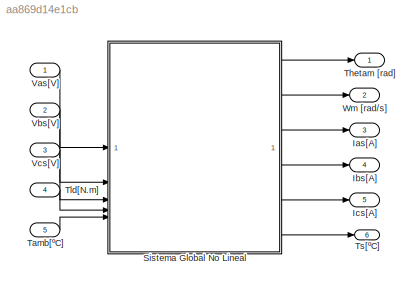
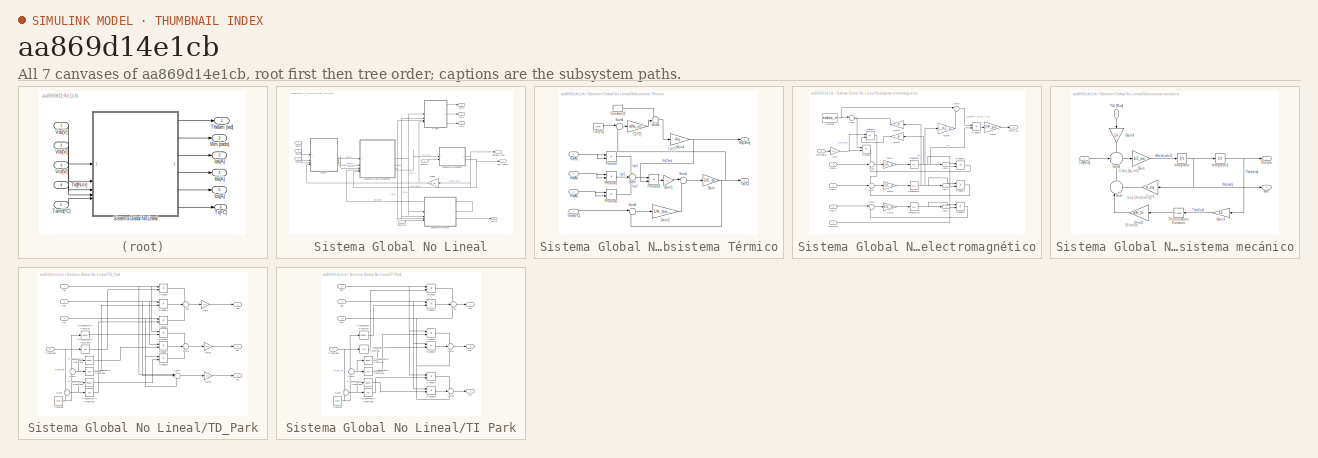
[diagram: thumbnail index - all 7 canvases of the model, root first then tree order]
MODEL slx_aa869d14e1cb
KIND model
CONFIG AbsTol = auto
CONFIG EnableMultiTasking = off
CONFIG FixedStep = auto
CONFIG MaxStep = auto
CONFIG MinStep = auto
CONFIG RelTol = 1e-3
CONFIG SampleTimeConstraint = Unconstrained
CONFIG SolverName = VariableStepAuto
CONFIG StartTime = 0.0
CONFIG StopTime = 10.0
BLOCK [Outport] Ias[A]
  Port = 3
BLOCK [Outport] Ibs[A]
  Port = 4
BLOCK [Outport] Ics[A]
  Port = 5
BLOCK [SubSystem] Sistema Global No Lineal
BLOCK [Gain] Sistema Global No Lineal/Gain2
  Gain = P_p
BLOCK [Outport] Sistema Global No Lineal/Ias[A]
  Port = 3
BLOCK [Outport] Sistema Global No Lineal/Ibs[A]
  Port = 4
BLOCK [Outport] Sistema Global No Lineal/Ics[A]
  Port = 5
BLOCK [SubSystem] Sistema Global No Lineal/Subsistema Térmico
BLOCK [Constant] Sistema Global No Lineal/Subsistema Térmico/Constant2
BLOCK [Gain] Sistema Global No Lineal/Subsistema Térmico/Gain
  Gain = 1/C_ts
BLOCK [Gain] Sistema Global No Lineal/Subsistema Térmico/Gain1
  Gain = 3/2
BLOCK [Gain] Sistema Global No Lineal/Subsistema Térmico/Gain2
  Gain = 1/R_tsamb
BLOCK [Gain] Sistema Global No Lineal/Subsistema Térmico/Gain4
  Gain = Rs
BLOCK [Inport] Sistema Global No Lineal/Subsistema Térmico/Ids[A]
  Port = 2
BLOCK [Inport] Sistema Global No Lineal/Subsistema Térmico/Ios[A]
  Port = 3
BLOCK [Inport] Sistema Global No Lineal/Subsistema Térmico/Iqs[A]
BLOCK [Product] Sistema Global No Lineal/Subsistema Térmico/Product
BLOCK [Product] Sistema Global No Lineal/Subsistema Térmico/Product1
BLOCK [Product] Sistema Global No Lineal/Subsistema Térmico/Product2
BLOCK [Product] Sistema Global No Lineal/Subsistema Térmico/Product3
BLOCK [Outport] Sistema Global No Lineal/Subsistema Térmico/Rs[Ohm]
BLOCK [Sum] Sistema Global No Lineal/Subsistema Térmico/Sum
  Inputs = +++
BLOCK [Sum] Sistema Global No Lineal/Subsistema Térmico/Sum1
  Inputs = |+-
BLOCK [Sum] Sistema Global No Lineal/Subsistema Térmico/Sum2
  Inputs = |-+
BLOCK [Sum] Sistema Global No Lineal/Subsistema Térmico/Sum3
  Inputs = ++|
BLOCK [Sum] Sistema Global No Lineal/Subsistema Térmico/Sum4
  Inputs = |-+
BLOCK [Inport] Sistema Global No Lineal/Subsistema Térmico/Tamb[ºC]
  Port = 4
BLOCK [Constant] Sistema Global No Lineal/Subsistema Térmico/Tref[ºC]
  Value = Tsref
BLOCK [Outport] Sistema Global No Lineal/Subsistema Térmico/Ts[ºC]
  Port = 2
BLOCK [Gain] Sistema Global No Lineal/Subsistema Térmico/[1//ºC]
  Gain = alfa_cu
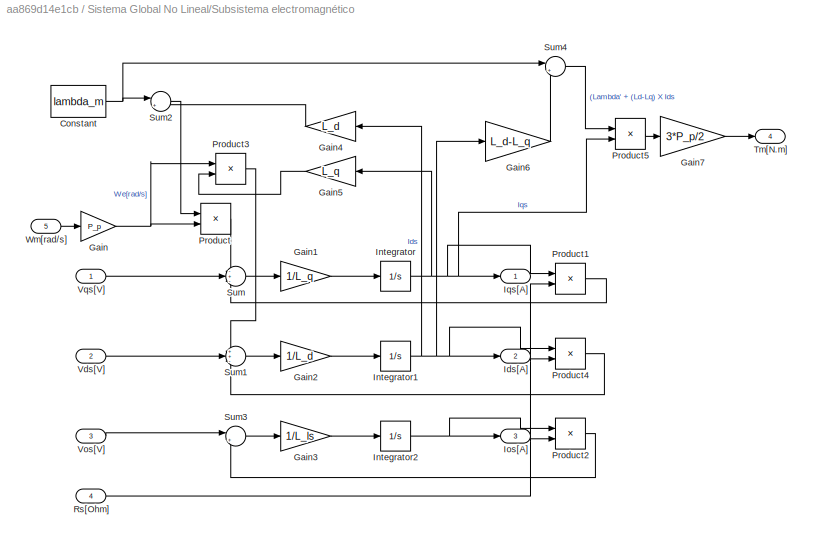
BLOCK [SubSystem] Sistema Global No Lineal/Subsistema electromagnético
BLOCK [Constant] Sistema Global No Lineal/Subsistema electromagnético/Constant
  Value = lambda_m
BLOCK [Gain] Sistema Global No Lineal/Subsistema electromagnético/Gain
  Gain = P_p
BLOCK [Gain] Sistema Global No Lineal/Subsistema electromagnético/Gain1
  Gain = 1/L_q
BLOCK [Gain] Sistema Global No Lineal/Subsistema electromagnético/Gain2
  Gain = 1/L_d
BLOCK [Gain] Sistema Global No Lineal/Subsistema electromagnético/Gain3
  Gain = 1/L_ls
BLOCK [Gain] Sistema Global No Lineal/Subsistema electromagnético/Gain4
  Gain = L_d
BLOCK [Gain] Sistema Global No Lineal/Subsistema electromagnético/Gain5
  Gain = L_q
BLOCK [Gain] Sistema Global No Lineal/Subsistema electromagnético/Gain6
  Gain = L_d-L_q
BLOCK [Gain] Sistema Global No Lineal/Subsistema electromagnético/Gain7
  Gain = 3*P_p/2
BLOCK [Outport] Sistema Global No Lineal/Subsistema electromagnético/Ids[A]
  Port = 2
BLOCK [Integrator] Sistema Global No Lineal/Subsistema electromagnético/Integrator
BLOCK [Integrator] Sistema Global No Lineal/Subsistema electromagnético/Integrator1
BLOCK [Integrator] Sistema Global No Lineal/Subsistema electromagnético/Integrator2
BLOCK [Outport] Sistema Global No Lineal/Subsistema electromagnético/Ios[A]
  Port = 3
BLOCK [Outport] Sistema Global No Lineal/Subsistema electromagnético/Iqs[A]
BLOCK [Product] Sistema Global No Lineal/Subsistema electromagnético/Product
BLOCK [Product] Sistema Global No Lineal/Subsistema electromagnético/Product1
BLOCK [Product] Sistema Global No Lineal/Subsistema electromagnético/Product2
BLOCK [Product] Sistema Global No Lineal/Subsistema electromagnético/Product3
BLOCK [Product] Sistema Global No Lineal/Subsistema electromagnético/Product4
BLOCK [Product] Sistema Global No Lineal/Subsistema electromagnético/Product5
BLOCK [Inport] Sistema Global No Lineal/Subsistema electromagnético/Rs[Ohm]
  Port = 4
BLOCK [Sum] Sistema Global No Lineal/Subsistema electromagnético/Sum
  Inputs = -+-
BLOCK [Sum] Sistema Global No Lineal/Subsistema electromagnético/Sum1
  Inputs = ++-
BLOCK [Sum] Sistema Global No Lineal/Subsistema electromagnético/Sum2
  Inputs = |++
BLOCK [Sum] Sistema Global No Lineal/Subsistema electromagnético/Sum3
  Inputs = |+-
BLOCK [Sum] Sistema Global No Lineal/Subsistema electromagnético/Sum4
  Inputs = |++
BLOCK [Outport] Sistema Global No Lineal/Subsistema electromagnético/Tm[N.m]
  Port = 4
BLOCK [Inport] Sistema Global No Lineal/Subsistema electromagnético/Vds[V]
  Port = 2
BLOCK [Inport] Sistema Global No Lineal/Subsistema electromagnético/Vos[V]
  Port = 3
BLOCK [Inport] Sistema Global No Lineal/Subsistema electromagnético/Vqs[V]
BLOCK [Inport] Sistema Global No Lineal/Subsistema electromagnético/Wm[rad//s]
  Port = 5
BLOCK [SubSystem] Sistema Global No Lineal/Subsistema mecánico
BLOCK [Gain] Sistema Global No Lineal/Subsistema mecánico/Gain
  Gain = 1/J_eq
BLOCK [Gain] Sistema Global No Lineal/Subsistema mecánico/Gain1
  Gain = b_eq
BLOCK [Gain] Sistema Global No Lineal/Subsistema mecánico/Gain2
  Gain = g*k_l/r
BLOCK [Gain] Sistema Global No Lineal/Subsistema mecánico/Gain3
  Gain = 1/r
BLOCK [Gain] Sistema Global No Lineal/Subsistema mecánico/Gain4
  Gain = 1/r
  NameLocation = left
BLOCK [Integrator] Sistema Global No Lineal/Subsistema mecánico/Integrator
BLOCK [Integrator] Sistema Global No Lineal/Subsistema mecánico/Integrator1
BLOCK [Sum] Sistema Global No Lineal/Subsistema mecánico/Sum
  Inputs = |++
  NameLocation = left
BLOCK [Sum] Sistema Global No Lineal/Subsistema mecánico/Sum1
  Inputs = -+-
BLOCK [Outport] Sistema Global No Lineal/Subsistema mecánico/Thetam
BLOCK [Inport] Sistema Global No Lineal/Subsistema mecánico/Tld [N.m]
  NameLocation = left
  Port = 2
BLOCK [Inport] Sistema Global No Lineal/Subsistema mecánico/Tm[N.m]
BLOCK [Trigonometry] Sistema Global No Lineal/Subsistema mecánico/Trigonometric Function
BLOCK [Outport] Sistema Global No Lineal/Subsistema mecánico/Wm
  Port = 2
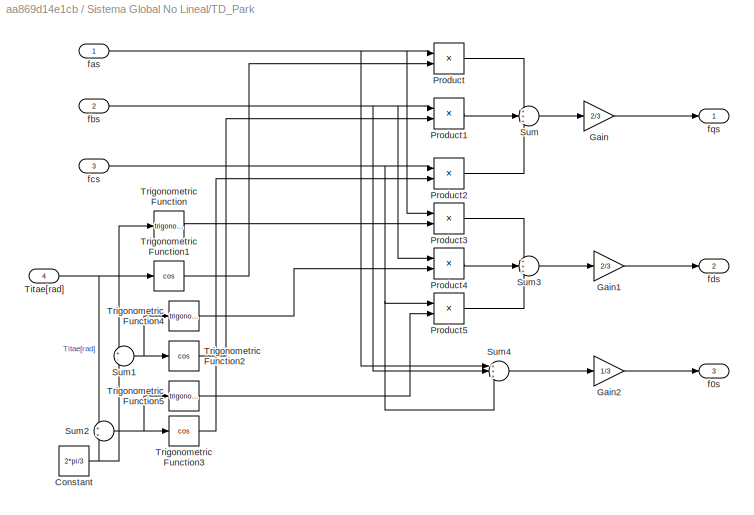
BLOCK [SubSystem] Sistema Global No Lineal/TD_Park
BLOCK [Constant] Sistema Global No Lineal/TD_Park/Constant
  Value = 2*pi/3
BLOCK [Gain] Sistema Global No Lineal/TD_Park/Gain
  Gain = 2/3
BLOCK [Gain] Sistema Global No Lineal/TD_Park/Gain1
  Gain = 2/3
BLOCK [Gain] Sistema Global No Lineal/TD_Park/Gain2
  Gain = 1/3
BLOCK [Product] Sistema Global No Lineal/TD_Park/Product
BLOCK [Product] Sistema Global No Lineal/TD_Park/Product1
BLOCK [Product] Sistema Global No Lineal/TD_Park/Product2
BLOCK [Product] Sistema Global No Lineal/TD_Park/Product3
BLOCK [Product] Sistema Global No Lineal/TD_Park/Product4
BLOCK [Product] Sistema Global No Lineal/TD_Park/Product5
BLOCK [Sum] Sistema Global No Lineal/TD_Park/Sum
  Inputs = +++
BLOCK [Sum] Sistema Global No Lineal/TD_Park/Sum1
  Inputs = +-
BLOCK [Sum] Sistema Global No Lineal/TD_Park/Sum2
BLOCK [Sum] Sistema Global No Lineal/TD_Park/Sum3
  Inputs = +++
BLOCK [Sum] Sistema Global No Lineal/TD_Park/Sum4
  Inputs = +++
BLOCK [Inport] Sistema Global No Lineal/TD_Park/Titae[rad]
  Port = 4
BLOCK [Trigonometry] Sistema Global No Lineal/TD_Park/Trigonometric Function
BLOCK [Trigonometry] Sistema Global No Lineal/TD_Park/Trigonometric Function1
  Operator = cos
BLOCK [Trigonometry] Sistema Global No Lineal/TD_Park/Trigonometric Function2
  Operator = cos
BLOCK [Trigonometry] Sistema Global No Lineal/TD_Park/Trigonometric Function3
  Operator = cos
BLOCK [Trigonometry] Sistema Global No Lineal/TD_Park/Trigonometric Function4
BLOCK [Trigonometry] Sistema Global No Lineal/TD_Park/Trigonometric Function5
BLOCK [Outport] Sistema Global No Lineal/TD_Park/f0s
  Port = 3
BLOCK [Inport] Sistema Global No Lineal/TD_Park/fas
BLOCK [Inport] Sistema Global No Lineal/TD_Park/fbs
  Port = 2
BLOCK [Inport] Sistema Global No Lineal/TD_Park/fcs
  Port = 3
BLOCK [Outport] Sistema Global No Lineal/TD_Park/fds
  Port = 2
BLOCK [Outport] Sistema Global No Lineal/TD_Park/fqs
BLOCK [SubSystem] Sistema Global No Lineal/TI Park
BLOCK [Constant] Sistema Global No Lineal/TI Park/Constant
  Value = 2*pi/3
BLOCK [Product] Sistema Global No Lineal/TI Park/Product
BLOCK [Product] Sistema Global No Lineal/TI Park/Product1
BLOCK [Product] Sistema Global No Lineal/TI Park/Product2
BLOCK [Product] Sistema Global No Lineal/TI Park/Product3
BLOCK [Product] Sistema Global No Lineal/TI Park/Product4
BLOCK [Product] Sistema Global No Lineal/TI Park/Product5
BLOCK [Sum] Sistema Global No Lineal/TI Park/Sum
  Inputs = +++
BLOCK [Sum] Sistema Global No Lineal/TI Park/Sum1
  Inputs = +-
BLOCK [Sum] Sistema Global No Lineal/TI Park/Sum2
BLOCK [Sum] Sistema Global No Lineal/TI Park/Sum3
  Inputs = +++
BLOCK [Sum] Sistema Global No Lineal/TI Park/Sum4
  Inputs = +++
BLOCK [Inport] Sistema Global No Lineal/TI Park/Titae[rad]
  Port = 4
BLOCK [Trigonometry] Sistema Global No Lineal/TI Park/Trigonometric Function
BLOCK [Trigonometry] Sistema Global No Lineal/TI Park/Trigonometric Function1
  Operator = cos
BLOCK [Trigonometry] Sistema Global No Lineal/TI Park/Trigonometric Function2
  Operator = cos
BLOCK [Trigonometry] Sistema Global No Lineal/TI Park/Trigonometric Function3
  Operator = cos
BLOCK [Trigonometry] Sistema Global No Lineal/TI Park/Trigonometric Function4
BLOCK [Trigonometry] Sistema Global No Lineal/TI Park/Trigonometric Function5
BLOCK [Inport] Sistema Global No Lineal/TI Park/f0s
  Port = 3
BLOCK [Outport] Sistema Global No Lineal/TI Park/fas
BLOCK [Outport] Sistema Global No Lineal/TI Park/fbs
  Port = 2
BLOCK [Outport] Sistema Global No Lineal/TI Park/fcs
  Port = 3
BLOCK [Inport] Sistema Global No Lineal/TI Park/fds
  Port = 2
BLOCK [Inport] Sistema Global No Lineal/TI Park/fqs
BLOCK [Inport] Sistema Global No Lineal/Tamb[ºC]
  Port = 5
BLOCK [Outport] Sistema Global No Lineal/Thetam [rad]
BLOCK [Inport] Sistema Global No Lineal/Tld[N.m]
  Port = 4
BLOCK [Outport] Sistema Global No Lineal/Ts[ºC]
  Port = 6
BLOCK [Inport] Sistema Global No Lineal/Vas[V]
BLOCK [Inport] Sistema Global No Lineal/Vbs[V]
  Port = 2
BLOCK [Inport] Sistema Global No Lineal/Vcs[V]
  Port = 3
BLOCK [Outport] Sistema Global No Lineal/Wm [rad//s]
  Port = 2
BLOCK [Inport] Tamb[ºC]
  Port = 5
BLOCK [Outport] Thetam [rad]
BLOCK [Inport] Tld[N.m]
  Port = 4
BLOCK [Outport] Ts[ºC]
  Port = 6
BLOCK [Inport] Vas[V]
BLOCK [Inport] Vbs[V]
  Port = 2
BLOCK [Inport] Vcs[V]
  Port = 3
BLOCK [Outport] Wm [rad//s]
  Port = 2
ANNOTATION Sistema Global No Lineal/Subsistema mecánico: 1/Jeq [kg.m^2]
ANNOTATION Sistema Global No Lineal/Subsistema mecánico: [N.m/rad]
ANNOTATION Sistema Global No Lineal/Subsistema mecánico: beq [N.m/{rad/s}]
NET Sistema Global No Lineal/Gain2:1 -> Sistema Global No Lineal/TD_Park:4, Sistema Global No Lineal/TI Park:4
LINE Sistema Global No Lineal/Subsistema Térmico/Constant2:1 -> Sistema Global No Lineal/Subsistema Térmico/Sum3:1
LINE Sistema Global No Lineal/Subsistema Térmico/Gain1:1 -> Sistema Global No Lineal/Subsistema Térmico/Sum1:1
LINE Sistema Global No Lineal/Subsistema Térmico/Gain2:1 -> Sistema Global No Lineal/Subsistema Térmico/Sum1:2
NET Sistema Global No Lineal/Subsistema Térmico/Gain4:1 -> Sistema Global No Lineal/Subsistema Térmico/Product3:2, Sistema Global No Lineal/Subsistema Térmico/Rs[Ohm]:1
NET Sistema Global No Lineal/Subsistema Térmico/Gain:1 -> Sistema Global No Lineal/Subsistema Térmico/Sum2:2, Sistema Global No Lineal/Subsistema Térmico/Sum4:2, Sistema Global No Lineal/Subsistema Térmico/Ts[ºC]:1
NET Sistema Global No Lineal/Subsistema Térmico/Ids[A]:1 -> Sistema Global No Lineal/Subsistema Térmico/Product1:1, Sistema Global No Lineal/Subsistema Térmico/Product1:2
NET Sistema Global No Lineal/Subsistema Térmico/Ios[A]:1 -> Sistema Global No Lineal/Subsistema Térmico/Product2:1, Sistema Global No Lineal/Subsistema Térmico/Product2:2
NET Sistema Global No Lineal/Subsistema Térmico/Iqs[A]:1 -> Sistema Global No Lineal/Subsistema Térmico/Product:1, Sistema Global No Lineal/Subsistema Térmico/Product:2
LINE Sistema Global No Lineal/Subsistema Térmico/Product1:1 -> Sistema Global No Lineal/Subsistema Térmico/Sum:2
LINE Sistema Global No Lineal/Subsistema Térmico/Product2:1 -> Sistema Global No Lineal/Subsistema Térmico/Sum:3
LINE Sistema Global No Lineal/Subsistema Térmico/Product3:1 -> Sistema Global No Lineal/Subsistema Térmico/Gain1:1
LINE Sistema Global No Lineal/Subsistema Térmico/Product:1 -> Sistema Global No Lineal/Subsistema Térmico/Sum:1
LINE Sistema Global No Lineal/Subsistema Térmico/Sum1:1 -> Sistema Global No Lineal/Subsistema Térmico/Gain:1
LINE Sistema Global No Lineal/Subsistema Térmico/Sum2:1 -> Sistema Global No Lineal/Subsistema Térmico/Gain2:1
LINE Sistema Global No Lineal/Subsistema Térmico/Sum3:1 -> Sistema Global No Lineal/Subsistema Térmico/Gain4:1
LINE Sistema Global No Lineal/Subsistema Térmico/Sum4:1 -> Sistema Global No Lineal/Subsistema Térmico/[1//ºC]:1
LINE Sistema Global No Lineal/Subsistema Térmico/Sum:1 -> Sistema Global No Lineal/Subsistema Térmico/Product3:1
LINE Sistema Global No Lineal/Subsistema Térmico/Tamb[ºC]:1 -> Sistema Global No Lineal/Subsistema Térmico/Sum2:1
LINE Sistema Global No Lineal/Subsistema Térmico/Tref[ºC]:1 -> Sistema Global No Lineal/Subsistema Térmico/Sum4:1
LINE Sistema Global No Lineal/Subsistema Térmico/[1//ºC]:1 -> Sistema Global No Lineal/Subsistema Térmico/Sum3:2
LINE Sistema Global No Lineal/Subsistema Térmico:1 -> Sistema Global No Lineal/Subsistema electromagnético:4
LINE Sistema Global No Lineal/Subsistema Térmico:2 -> Sistema Global No Lineal/Ts[ºC]:1
NET Sistema Global No Lineal/Subsistema electromagnético/Constant:1 -> Sistema Global No Lineal/Subsistema electromagnético/Sum2:1, Sistema Global No Lineal/Subsistema electromagnético/Sum4:1
LINE Sistema Global No Lineal/Subsistema electromagnético/Gain1:1 -> Sistema Global No Lineal/Subsistema electromagnético/Integrator:1
LINE Sistema Global No Lineal/Subsistema electromagnético/Gain2:1 -> Sistema Global No Lineal/Subsistema electromagnético/Integrator1:1
LINE Sistema Global No Lineal/Subsistema electromagnético/Gain3:1 -> Sistema Global No Lineal/Subsistema electromagnético/Integrator2:1
LINE Sistema Global No Lineal/Subsistema electromagnético/Gain4:1 -> Sistema Global No Lineal/Subsistema electromagnético/Sum2:2
LINE Sistema Global No Lineal/Subsistema electromagnético/Gain5:1 -> Sistema Global No Lineal/Subsistema electromagnético/Product3:2
LINE Sistema Global No Lineal/Subsistema electromagnético/Gain6:1 -> Sistema Global No Lineal/Subsistema electromagnético/Sum4:2
LINE Sistema Global No Lineal/Subsistema electromagnético/Gain7:1 -> Sistema Global No Lineal/Subsistema electromagnético/Tm[N.m]:1
NET Sistema Global No Lineal/Subsistema electromagnético/Gain:1 -> Sistema Global No Lineal/Subsistema electromagnético/Product3:1, Sistema Global No Lineal/Subsistema electromagnético/Product:2
NET Sistema Global No Lineal/Subsistema electromagnético/Integrator1:1 -> Sistema Global No Lineal/Subsistema electromagnético/Gain4:1, Sistema Global No Lineal/Subsistema electromagnético/Gain6:1, Sistema Global No Lineal/Subsistema electromagnético/Ids[A]:1, Sistema Global No Lineal/Subsistema electromagnético/Product4:1
NET Sistema Global No Lineal/Subsistema electromagnético/Integrator2:1 -> Sistema Global No Lineal/Subsistema electromagnético/Ios[A]:1, Sistema Global No Lineal/Subsistema electromagnético/Product2:1
NET Sistema Global No Lineal/Subsistema electromagnético/Integrator:1 -> Sistema Global No Lineal/Subsistema electromagnético/Gain5:1, Sistema Global No Lineal/Subsistema electromagnético/Iqs[A]:1, Sistema Global No Lineal/Subsistema electromagnético/Product1:1, Sistema Global No Lineal/Subsistema electromagnético/Product5:2
LINE Sistema Global No Lineal/Subsistema electromagnético/Product1:1 -> Sistema Global No Lineal/Subsistema electromagnético/Sum:3
LINE Sistema Global No Lineal/Subsistema electromagnético/Product2:1 -> Sistema Global No Lineal/Subsistema electromagnético/Sum3:2
LINE Sistema Global No Lineal/Subsistema electromagnético/Product3:1 -> Sistema Global No Lineal/Subsistema electromagnético/Sum1:1
LINE Sistema Global No Lineal/Subsistema electromagnético/Product4:1 -> Sistema Global No Lineal/Subsistema electromagnético/Sum1:3
LINE Sistema Global No Lineal/Subsistema electromagnético/Product5:1 -> Sistema Global No Lineal/Subsistema electromagnético/Gain7:1
LINE Sistema Global No Lineal/Subsistema electromagnético/Product:1 -> Sistema Global No Lineal/Subsistema electromagnético/Sum:1
NET Sistema Global No Lineal/Subsistema electromagnético/Rs[Ohm]:1 -> Sistema Global No Lineal/Subsistema electromagnético/Product1:2, Sistema Global No Lineal/Subsistema electromagnético/Product2:2, Sistema Global No Lineal/Subsistema electromagnético/Product4:2
LINE Sistema Global No Lineal/Subsistema electromagnético/Sum1:1 -> Sistema Global No Lineal/Subsistema electromagnético/Gain2:1
LINE Sistema Global No Lineal/Subsistema electromagnético/Sum2:1 -> Sistema Global No Lineal/Subsistema electromagnético/Product:1
LINE Sistema Global No Lineal/Subsistema electromagnético/Sum3:1 -> Sistema Global No Lineal/Subsistema electromagnético/Gain3:1
LINE Sistema Global No Lineal/Subsistema electromagnético/Sum4:1 -> Sistema Global No Lineal/Subsistema electromagnético/Product5:1
LINE Sistema Global No Lineal/Subsistema electromagnético/Sum:1 -> Sistema Global No Lineal/Subsistema electromagnético/Gain1:1
LINE Sistema Global No Lineal/Subsistema electromagnético/Vds[V]:1 -> Sistema Global No Lineal/Subsistema electromagnético/Sum1:2
LINE Sistema Global No Lineal/Subsistema electromagnético/Vos[V]:1 -> Sistema Global No Lineal/Subsistema electromagnético/Sum3:1
LINE Sistema Global No Lineal/Subsistema electromagnético/Vqs[V]:1 -> Sistema Global No Lineal/Subsistema electromagnético/Sum:2
LINE Sistema Global No Lineal/Subsistema electromagnético/Wm[rad//s]:1 -> Sistema Global No Lineal/Subsistema electromagnético/Gain:1
NET Sistema Global No Lineal/Subsistema electromagnético:1 -> Sistema Global No Lineal/Subsistema Térmico:1, Sistema Global No Lineal/TI Park:1
NET Sistema Global No Lineal/Subsistema electromagnético:2 -> Sistema Global No Lineal/Subsistema Térmico:2, Sistema Global No Lineal/TI Park:2
NET Sistema Global No Lineal/Subsistema electromagnético:3 -> Sistema Global No Lineal/Subsistema Térmico:3, Sistema Global No Lineal/TI Park:3
LINE Sistema Global No Lineal/Subsistema electromagnético:4 -> Sistema Global No Lineal/Subsistema mecánico:1
LINE Sistema Global No Lineal/Subsistema mecánico/Gain1:1 -> Sistema Global No Lineal/Subsistema mecánico/Sum:2
LINE Sistema Global No Lineal/Subsistema mecánico/Gain2:1 -> Sistema Global No Lineal/Subsistema mecánico/Sum:1
LINE Sistema Global No Lineal/Subsistema mecánico/Gain3:1 -> Sistema Global No Lineal/Subsistema mecánico/Trigonometric Function:1
LINE Sistema Global No Lineal/Subsistema mecánico/Gain4:1 -> Sistema Global No Lineal/Subsistema mecánico/Sum1:1
LINE Sistema Global No Lineal/Subsistema mecánico/Gain:1 -> Sistema Global No Lineal/Subsistema mecánico/Integrator:1
NET Sistema Global No Lineal/Subsistema mecánico/Integrator1:1 -> Sistema Global No Lineal/Subsistema mecánico/Gain3:1, Sistema Global No Lineal/Subsistema mecánico/Thetam:1
NET Sistema Global No Lineal/Subsistema mecánico/Integrator:1 -> Sistema Global No Lineal/Subsistema mecánico/Gain1:1, Sistema Global No Lineal/Subsistema mecánico/Integrator1:1, Sistema Global No Lineal/Subsistema mecánico/Wm:1
LINE Sistema Global No Lineal/Subsistema mecánico/Sum1:1 -> Sistema Global No Lineal/Subsistema mecánico/Gain:1
LINE Sistema Global No Lineal/Subsistema mecánico/Sum:1 -> Sistema Global No Lineal/Subsistema mecánico/Sum1:3
LINE Sistema Global No Lineal/Subsistema mecánico/Tld [N.m]:1 -> Sistema Global No Lineal/Subsistema mecánico/Gain4:1
LINE Sistema Global No Lineal/Subsistema mecánico/Tm[N.m]:1 -> Sistema Global No Lineal/Subsistema mecánico/Sum1:2
LINE Sistema Global No Lineal/Subsistema mecánico/Trigonometric Function:1 -> Sistema Global No Lineal/Subsistema mecánico/Gain2:1
NET Sistema Global No Lineal/Subsistema mecánico:1 -> Sistema Global No Lineal/Gain2:1, Sistema Global No Lineal/Thetam [rad]:1
NET Sistema Global No Lineal/Subsistema mecánico:2 -> Sistema Global No Lineal/Subsistema electromagnético:5, Sistema Global No Lineal/Wm [rad//s]:1
NET Sistema Global No Lineal/TD_Park/Constant:1 -> Sistema Global No Lineal/TD_Park/Sum1:2, Sistema Global No Lineal/TD_Park/Sum2:2
LINE Sistema Global No Lineal/TD_Park/Gain1:1 -> Sistema Global No Lineal/TD_Park/fds:1
LINE Sistema Global No Lineal/TD_Park/Gain2:1 -> Sistema Global No Lineal/TD_Park/f0s:1
LINE Sistema Global No Lineal/TD_Park/Gain:1 -> Sistema Global No Lineal/TD_Park/fqs:1
LINE Sistema Global No Lineal/TD_Park/Product1:1 -> Sistema Global No Lineal/TD_Park/Sum:2
LINE Sistema Global No Lineal/TD_Park/Product2:1 -> Sistema Global No Lineal/TD_Park/Sum:3
LINE Sistema Global No Lineal/TD_Park/Product3:1 -> Sistema Global No Lineal/TD_Park/Sum3:1
LINE Sistema Global No Lineal/TD_Park/Product4:1 -> Sistema Global No Lineal/TD_Park/Sum3:2
LINE Sistema Global No Lineal/TD_Park/Product5:1 -> Sistema Global No Lineal/TD_Park/Sum3:3
LINE Sistema Global No Lineal/TD_Park/Product:1 -> Sistema Global No Lineal/TD_Park/Sum:1
NET Sistema Global No Lineal/TD_Park/Sum1:1 -> Sistema Global No Lineal/TD_Park/Trigonometric Function2:1, Sistema Global No Lineal/TD_Park/Trigonometric Function4:1
NET Sistema Global No Lineal/TD_Park/Sum2:1 -> Sistema Global No Lineal/TD_Park/Trigonometric Function3:1, Sistema Global No Lineal/TD_Park/Trigonometric Function5:1
LINE Sistema Global No Lineal/TD_Park/Sum3:1 -> Sistema Global No Lineal/TD_Park/Gain1:1
LINE Sistema Global No Lineal/TD_Park/Sum4:1 -> Sistema Global No Lineal/TD_Park/Gain2:1
LINE Sistema Global No Lineal/TD_Park/Sum:1 -> Sistema Global No Lineal/TD_Park/Gain:1
NET Sistema Global No Lineal/TD_Park/Titae[rad]:1 -> Sistema Global No Lineal/TD_Park/Sum1:1, Sistema Global No Lineal/TD_Park/Sum2:1, Sistema Global No Lineal/TD_Park/Trigonometric Function1:1, Sistema Global No Lineal/TD_Park/Trigonometric Function:1
LINE Sistema Global No Lineal/TD_Park/Trigonometric Function1:1 -> Sistema Global No Lineal/TD_Park/Product:2
LINE Sistema Global No Lineal/TD_Park/Trigonometric Function2:1 -> Sistema Global No Lineal/TD_Park/Product1:2
LINE Sistema Global No Lineal/TD_Park/Trigonometric Function3:1 -> Sistema Global No Lineal/TD_Park/Product2:2
LINE Sistema Global No Lineal/TD_Park/Trigonometric Function4:1 -> Sistema Global No Lineal/TD_Park/Product4:2
LINE Sistema Global No Lineal/TD_Park/Trigonometric Function5:1 -> Sistema Global No Lineal/TD_Park/Product5:2
LINE Sistema Global No Lineal/TD_Park/Trigonometric Function:1 -> Sistema Global No Lineal/TD_Park/Product3:2
NET Sistema Global No Lineal/TD_Park/fas:1 -> Sistema Global No Lineal/TD_Park/Product3:1, Sistema Global No Lineal/TD_Park/Product:1, Sistema Global No Lineal/TD_Park/Sum4:1
NET Sistema Global No Lineal/TD_Park/fbs:1 -> Sistema Global No Lineal/TD_Park/Product1:1, Sistema Global No Lineal/TD_Park/Product4:1, Sistema Global No Lineal/TD_Park/Sum4:2
NET Sistema Global No Lineal/TD_Park/fcs:1 -> Sistema Global No Lineal/TD_Park/Product2:1, Sistema Global No Lineal/TD_Park/Product5:1, Sistema Global No Lineal/TD_Park/Sum4:3
LINE Sistema Global No Lineal/TD_Park:1 -> Sistema Global No Lineal/Subsistema electromagnético:1
LINE Sistema Global No Lineal/TD_Park:2 -> Sistema Global No Lineal/Subsistema electromagnético:2
LINE Sistema Global No Lineal/TD_Park:3 -> Sistema Global No Lineal/Subsistema electromagnético:3
NET Sistema Global No Lineal/TI Park/Constant:1 -> Sistema Global No Lineal/TI Park/Sum1:2, Sistema Global No Lineal/TI Park/Sum2:2
LINE Sistema Global No Lineal/TI Park/Product1:1 -> Sistema Global No Lineal/TI Park/Sum:2
LINE Sistema Global No Lineal/TI Park/Product2:1 -> Sistema Global No Lineal/TI Park/Sum4:1
LINE Sistema Global No Lineal/TI Park/Product3:1 -> Sistema Global No Lineal/TI Park/Sum3:1
LINE Sistema Global No Lineal/TI Park/Product4:1 -> Sistema Global No Lineal/TI Park/Sum3:2
LINE Sistema Global No Lineal/TI Park/Product5:1 -> Sistema Global No Lineal/TI Park/Sum4:2
LINE Sistema Global No Lineal/TI Park/Product:1 -> Sistema Global No Lineal/TI Park/Sum:1
NET Sistema Global No Lineal/TI Park/Sum1:1 -> Sistema Global No Lineal/TI Park/Trigonometric Function2:1, Sistema Global No Lineal/TI Park/Trigonometric Function4:1
NET Sistema Global No Lineal/TI Park/Sum2:1 -> Sistema Global No Lineal/TI Park/Trigonometric Function3:1, Sistema Global No Lineal/TI Park/Trigonometric Function5:1
LINE Sistema Global No Lineal/TI Park/Sum3:1 -> Sistema Global No Lineal/TI Park/fbs:1
LINE Sistema Global No Lineal/TI Park/Sum4:1 -> Sistema Global No Lineal/TI Park/fcs:1
LINE Sistema Global No Lineal/TI Park/Sum:1 -> Sistema Global No Lineal/TI Park/fas:1
NET Sistema Global No Lineal/TI Park/Titae[rad]:1 -> Sistema Global No Lineal/TI Park/Sum1:1, Sistema Global No Lineal/TI Park/Sum2:1, Sistema Global No Lineal/TI Park/Trigonometric Function1:1, Sistema Global No Lineal/TI Park/Trigonometric Function:1
LINE Sistema Global No Lineal/TI Park/Trigonometric Function1:1 -> Sistema Global No Lineal/TI Park/Product:2
LINE Sistema Global No Lineal/TI Park/Trigonometric Function2:1 -> Sistema Global No Lineal/TI Park/Product3:2
LINE Sistema Global No Lineal/TI Park/Trigonometric Function3:1 -> Sistema Global No Lineal/TI Park/Product2:2
LINE Sistema Global No Lineal/TI Park/Trigonometric Function4:1 -> Sistema Global No Lineal/TI Park/Product4:2
LINE Sistema Global No Lineal/TI Park/Trigonometric Function5:1 -> Sistema Global No Lineal/TI Park/Product5:2
LINE Sistema Global No Lineal/TI Park/Trigonometric Function:1 -> Sistema Global No Lineal/TI Park/Product1:2
NET Sistema Global No Lineal/TI Park/f0s:1 -> Sistema Global No Lineal/TI Park/Sum3:3, Sistema Global No Lineal/TI Park/Sum4:3, Sistema Global No Lineal/TI Park/Sum:3
NET Sistema Global No Lineal/TI Park/fds:1 -> Sistema Global No Lineal/TI Park/Product1:1, Sistema Global No Lineal/TI Park/Product4:1, Sistema Global No Lineal/TI Park/Product5:1
NET Sistema Global No Lineal/TI Park/fqs:1 -> Sistema Global No Lineal/TI Park/Product2:1, Sistema Global No Lineal/TI Park/Product3:1, Sistema Global No Lineal/TI Park/Product:1
LINE Sistema Global No Lineal/TI Park:1 -> Sistema Global No Lineal/Ias[A]:1
LINE Sistema Global No Lineal/TI Park:2 -> Sistema Global No Lineal/Ibs[A]:1
LINE Sistema Global No Lineal/TI Park:3 -> Sistema Global No Lineal/Ics[A]:1
LINE Sistema Global No Lineal/Tamb[ºC]:1 -> Sistema Global No Lineal/Subsistema Térmico:4
LINE Sistema Global No Lineal/Tld[N.m]:1 -> Sistema Global No Lineal/Subsistema mecánico:2
LINE Sistema Global No Lineal/Vas[V]:1 -> Sistema Global No Lineal/TD_Park:1
LINE Sistema Global No Lineal/Vbs[V]:1 -> Sistema Global No Lineal/TD_Park:2
LINE Sistema Global No Lineal/Vcs[V]:1 -> Sistema Global No Lineal/TD_Park:3
LINE Sistema Global No Lineal:1 -> Thetam [rad]:1
LINE Sistema Global No Lineal:2 -> Wm [rad//s]:1
LINE Sistema Global No Lineal:3 -> Ias[A]:1
LINE Sistema Global No Lineal:4 -> Ibs[A]:1
LINE Sistema Global No Lineal:5 -> Ics[A]:1
LINE Sistema Global No Lineal:6 -> Ts[ºC]:1
LINE Tamb[ºC]:1 -> Sistema Global No Lineal:5
LINE Tld[N.m]:1 -> Sistema Global No Lineal:4
LINE Vas[V]:1 -> Sistema Global No Lineal:1
LINE Vbs[V]:1 -> Sistema Global No Lineal:2
LINE Vcs[V]:1 -> Sistema Global No Lineal:3
note: NET lines group one-source signal fan-out (src -> all destinations, sorted); 1:1 wires keep LINE
